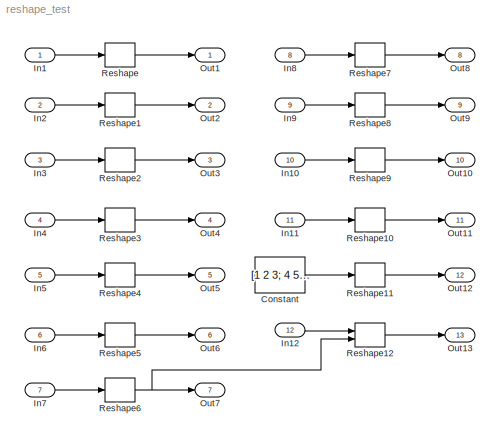
MODEL reshape_test
KIND model
BLOCK [Constant] Constant
  SID = 64
  Value = [1 2 3; 4 5 6]
BLOCK [Inport] In1
  IconDisplay = Port number
  OutDataTypeStr = double
  PortDimensions = 1
  SID = 1
BLOCK [Inport] In10
  IconDisplay = Port number
  OutDataTypeStr = boolean
  Port = 10
  PortDimensions = [2 3]
  SID = 55
BLOCK [Inport] In11
  IconDisplay = Port number
  OutDataTypeStr = boolean
  Port = 11
  PortDimensions = [2 3]
  SID = 58
BLOCK [Inport] In12
  IconDisplay = Port number
  OutDataTypeStr = boolean
  Port = 12
  PortDimensions = [2 3]
  SID = 68
BLOCK [Inport] In2
  IconDisplay = Port number
  Port = 2
  PortDimensions = 5
  SID = 2
BLOCK [Inport] In3
  IconDisplay = Port number
  OutDataTypeStr = boolean
  Port = 3
  PortDimensions = [2 3]
  SID = 3
BLOCK [Inport] In4
  IconDisplay = Port number
  Port = 4
  PortDimensions = 5
  SID = 37
BLOCK [Inport] In5
  IconDisplay = Port number
  OutDataTypeStr = boolean
  Port = 5
  PortDimensions = [2 3]
  SID = 38
BLOCK [Inport] In6
  IconDisplay = Port number
  Port = 6
  PortDimensions = 5
  SID = 43
BLOCK [Inport] In7
  IconDisplay = Port number
  OutDataTypeStr = boolean
  Port = 7
  PortDimensions = [2 3]
  SID = 44
BLOCK [Inport] In8
  IconDisplay = Port number
  Port = 8
  PortDimensions = 5
  SID = 49
BLOCK [Inport] In9
  IconDisplay = Port number
  OutDataTypeStr = boolean
  Port = 9
  PortDimensions = [2 3]
  SID = 50
BLOCK [Outport] Out1
  IconDisplay = Port number
  SID = 25
BLOCK [Outport] Out10
  IconDisplay = Port number
  Port = 10
  SID = 57
BLOCK [Outport] Out11
  IconDisplay = Port number
  Port = 11
  SID = 60
BLOCK [Outport] Out12
  IconDisplay = Port number
  Port = 12
  SID = 63
BLOCK [Outport] Out13
  IconDisplay = Port number
  Port = 13
  SID = 70
BLOCK [Outport] Out2
  IconDisplay = Port number
  Port = 2
  SID = 26
BLOCK [Outport] Out3
  IconDisplay = Port number
  Port = 3
  SID = 27
BLOCK [Outport] Out4
  IconDisplay = Port number
  Port = 4
  SID = 41
BLOCK [Outport] Out5
  IconDisplay = Port number
  Port = 5
  SID = 42
BLOCK [Outport] Out6
  IconDisplay = Port number
  Port = 6
  SID = 47
BLOCK [Outport] Out7
  IconDisplay = Port number
  Port = 7
  SID = 48
BLOCK [Outport] Out8
  IconDisplay = Port number
  Port = 8
  SID = 53
BLOCK [Outport] Out9
  IconDisplay = Port number
  Port = 9
  SID = 54
BLOCK [Reshape] Reshape
  Ports = [1, 1]
  SID = 34
BLOCK [Reshape] Reshape1
  Ports = [1, 1]
  SID = 35
BLOCK [Reshape] Reshape10
  OutputDimensionality = Customize
  OutputDimensions = [6,1]
  Ports = [1, 1]
  SID = 59
BLOCK [Reshape] Reshape11
  OutputDimensionality = Customize
  OutputDimensions = [3,2]
  Ports = [1, 1]
  SID = 62
BLOCK [Reshape] Reshape12
  OutputDimensionality = Derive from reference input port
  OutputDimensions = [6,1]
  Ports = [2, 1]
  SID = 69
BLOCK [Reshape] Reshape2
  Ports = [1, 1]
  SID = 36
BLOCK [Reshape] Reshape3
  OutputDimensionality = Column vector (2-D)
  Ports = [1, 1]
  SID = 39
BLOCK [Reshape] Reshape4
  OutputDimensionality = Column vector (2-D)
  Ports = [1, 1]
  SID = 40
BLOCK [Reshape] Reshape5
  OutputDimensionality = Row vector (2-D)
  Ports = [1, 1]
  SID = 45
BLOCK [Reshape] Reshape6
  OutputDimensionality = Row vector (2-D)
  Ports = [1, 1]
  SID = 46
BLOCK [Reshape] Reshape7
  OutputDimensionality = Customize
  OutputDimensions = [5]
  Ports = [1, 1]
  SID = 51
BLOCK [Reshape] Reshape8
  OutputDimensionality = Customize
  OutputDimensions = [1,6]
  Ports = [1, 1]
  SID = 52
BLOCK [Reshape] Reshape9
  OutputDimensionality = Customize
  OutputDimensions = [6]
  Ports = [1, 1]
  SID = 56
LINE Constant:1 -> Reshape11:1
LINE In10:1 -> Reshape9:1
LINE In11:1 -> Reshape10:1
LINE In12:1 -> Reshape12:1
LINE In1:1 -> Reshape:1
LINE In2:1 -> Reshape1:1
LINE In3:1 -> Reshape2:1
LINE In4:1 -> Reshape3:1
LINE In5:1 -> Reshape4:1
LINE In6:1 -> Reshape5:1
LINE In7:1 -> Reshape6:1
LINE In8:1 -> Reshape7:1
LINE In9:1 -> Reshape8:1
LINE Reshape10:1 -> Out11:1
LINE Reshape11:1 -> Out12:1
LINE Reshape12:1 -> Out13:1
LINE Reshape1:1 -> Out2:1
LINE Reshape2:1 -> Out3:1
LINE Reshape3:1 -> Out4:1
LINE Reshape4:1 -> Out5:1
LINE Reshape5:1 -> Out6:1
NET Reshape6:1 -> Out7:1, Reshape12:2
LINE Reshape7:1 -> Out8:1
LINE Reshape8:1 -> Out9:1
LINE Reshape9:1 -> Out10:1
LINE Reshape:1 -> Out1:1
note: NET lines group one-source signal fan-out (src -> all destinations, sorted); 1:1 wires keep LINE
